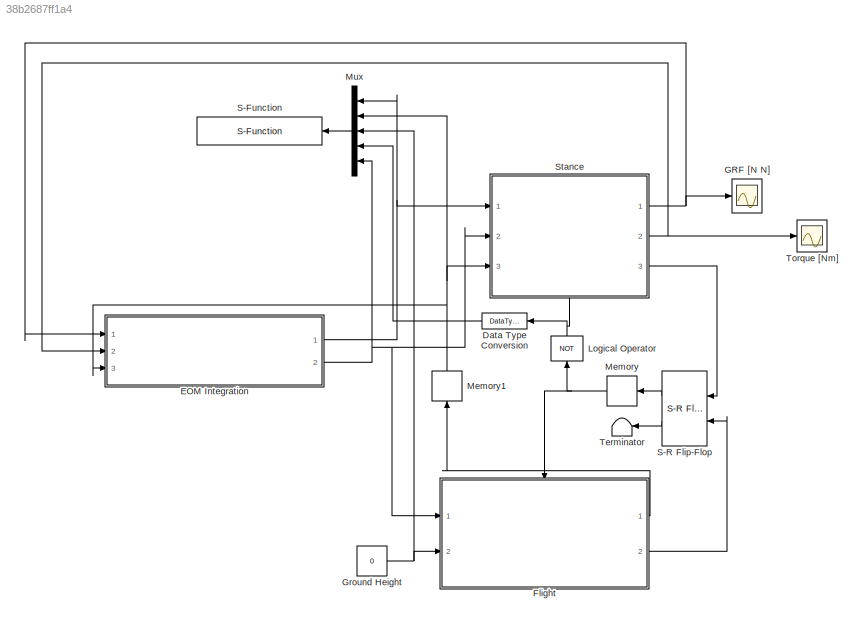
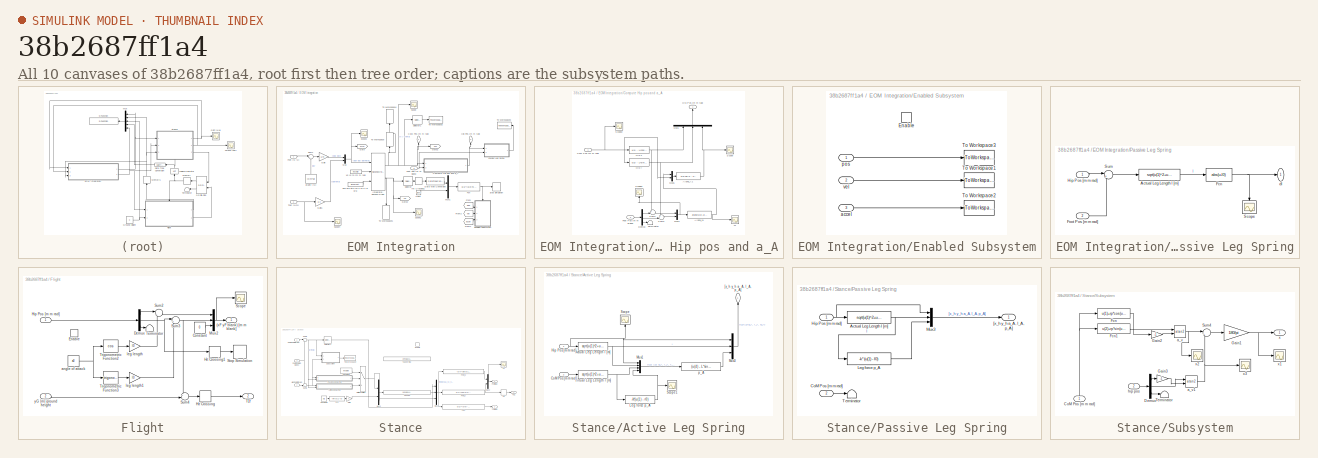
[diagram: thumbnail index - all 10 canvases of the model, root first then tree order]
MODEL slx_38b2687ff1a4
KIND model
CONFIG AbsTol = 1e-6
CONFIG FixedStep = auto
CONFIG MaxStep = 1e-3
CONFIG MinStep = auto
CONFIG RelTol = 1e-4
CONFIG SampleTimeConstraint = Unconstrained
CONFIG Solver = ode45
CONFIG SolverMode = Auto
CONFIG SolverName = ode45
CONFIG StartTime = 0.0
CONFIG StopTime = 500
BLOCK [DataTypeConversion] Data Type Conversion
  OutDataTypeStr = double
  RndMeth = Floor
  SaturateOnIntegerOverflow = off
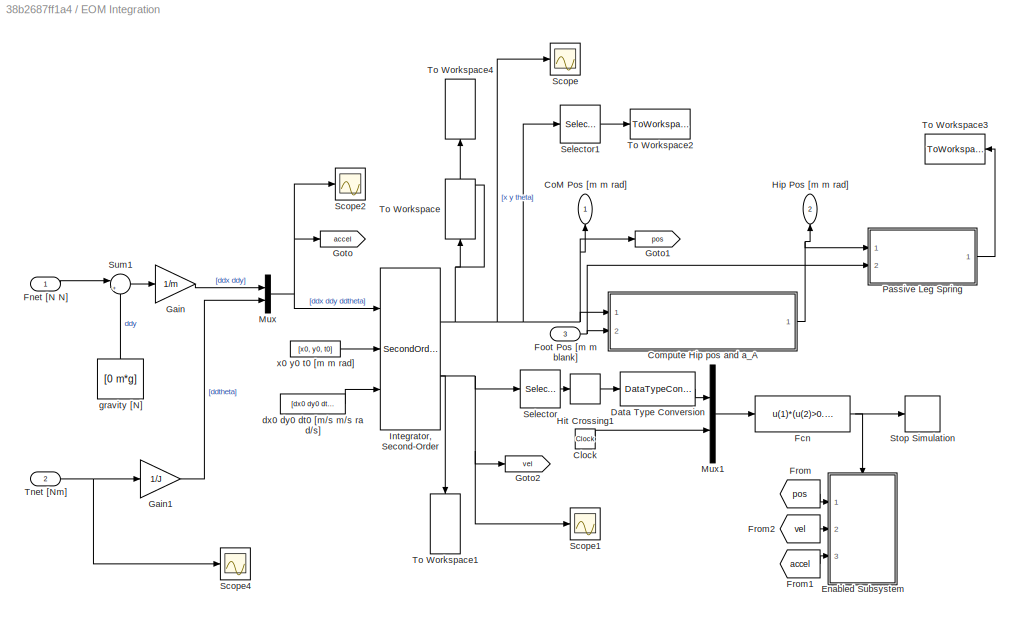
BLOCK [SubSystem] EOM Integration
  Ports = [3, 2]
  RequestExecContextInheritance = off
BLOCK [Clock] EOM Integration/Clock
BLOCK [Outport] EOM Integration/CoM Pos [m m rad]
  IconDisplay = Port number
BLOCK [SubSystem] EOM Integration/Compute Hip pos and a_A
  Ports = [2, 1]
  RequestExecContextInheritance = off
BLOCK [Fcn] EOM Integration/Compute Hip pos and a_A/Alpha_A1
  Expr = u(1)+pi/2 - u(4)
BLOCK [Fcn] EOM Integration/Compute Hip pos and a_A/Alpha_s1
  Expr = atan2(u(2),u(1)) - pi
BLOCK [Inport] EOM Integration/Compute Hip pos and a_A/CoM Pos [m m rad]
  IconDisplay = Port number
BLOCK [Demux] EOM Integration/Compute Hip pos and a_A/Demux
  DisplayOption = bar
  Outputs = 3
  Ports = [1, 3]
BLOCK [Inport] EOM Integration/Compute Hip pos and a_A/Foot Pos [m m blank]
  IconDisplay = Port number
  Port = 2
BLOCK [Outport] EOM Integration/Compute Hip pos and a_A/Hip Pos [m m rad]
  IconDisplay = Port number
BLOCK [Fcn] EOM Integration/Compute Hip pos and a_A/Hip x
  Expr = u(1) - L*cos(u(3))
BLOCK [Fcn] EOM Integration/Compute Hip pos and a_A/Hip y
  Expr = u(2) - L*sin(u(3))
BLOCK [Mux] EOM Integration/Compute Hip pos and a_A/Mux1
  DisplayOption = bar
  Inputs = 3
  Ports = [3, 1]
BLOCK [Mux] EOM Integration/Compute Hip pos and a_A/Mux4
  DisplayOption = bar
  Inputs = 2
  Ports = [2, 1]
BLOCK [Mux] EOM Integration/Compute Hip pos and a_A/Mux5
  DisplayOption = bar
  Inputs = 2
  Ports = [2, 1]
BLOCK [Scope] EOM Integration/Compute Hip pos and a_A/Scope
  Floating = off
  LimitDataPoints = off
  NumInputPorts = 1
  Ports = [1]
  SaveName = ScopeData2
  TimeRange = 5
  ZoomMode = xonly
BLOCK [Scope] EOM Integration/Compute Hip pos and a_A/Scope1
  Floating = off
  NumInputPorts = 1
  Ports = [1]
  SaveName = ScopeData1
  ZoomMode = xonly
BLOCK [Scope] EOM Integration/Compute Hip pos and a_A/Scope2
  Floating = off
  LimitDataPoints = off
  NumInputPorts = 1
  Ports = [1]
  SaveName = ScopeData9
  ZoomMode = yonly
BLOCK [Sum] EOM Integration/Compute Hip pos and a_A/Sum2
  IconShape = round
  InputSameDT = off
  Inputs = +-|
  OutDataTypeStr = Inherit: Inherit via internal rule
  Ports = [2, 1]
  SaturateOnIntegerOverflow = off
BLOCK [Sum] EOM Integration/Compute Hip pos and a_A/Sum3
  IconShape = round
  InputSameDT = off
  Inputs = +-|
  OutDataTypeStr = Inherit: Inherit via internal rule
  Ports = [2, 1]
  SaturateOnIntegerOverflow = off
BLOCK [Terminator] EOM Integration/Compute Hip pos and a_A/Terminator
BLOCK [Scope] EOM Integration/Compute Hip pos and a_A/x1
  Floating = off
  NumInputPorts = 1
  Ports = [1]
  SaveName = ScopeData4
  ZoomMode = yonly
BLOCK [DataTypeConversion] EOM Integration/Data Type Conversion
  OutDataTypeStr = double
  RndMeth = Floor
  SaturateOnIntegerOverflow = off
BLOCK [SubSystem] EOM Integration/Enabled Subsystem
  Ports = [3, 0, 1]
  RequestExecContextInheritance = off
  TreatAsAtomicUnit = on
BLOCK [EnablePort] EOM Integration/Enabled Subsystem/Enable
  Ports = []
BLOCK [ToWorkspace] EOM Integration/Enabled Subsystem/To Workspace1
  FixptAsFi = on
  MaxDataPoints = inf
  Ports = [1]
  SampleTime = -1
  Save2DSignal = 3-D array (concatenate along third dimension)
  SaveFormat = Timeseries
  VariableName = apexvel
BLOCK [ToWorkspace] EOM Integration/Enabled Subsystem/To Workspace2
  FixptAsFi = on
  MaxDataPoints = inf
  Ports = [1]
  SampleTime = -1
  Save2DSignal = 3-D array (concatenate along third dimension)
  SaveFormat = Timeseries
  VariableName = apexaccel
BLOCK [ToWorkspace] EOM Integration/Enabled Subsystem/To Workspace3
  FixptAsFi = on
  MaxDataPoints = inf
  Ports = [1]
  SampleTime = -1
  Save2DSignal = 3-D array (concatenate along third dimension)
  SaveFormat = Timeseries
  VariableName = apexpos
BLOCK [Inport] EOM Integration/Enabled Subsystem/accel
  IconDisplay = Port number
  Port = 3
BLOCK [Inport] EOM Integration/Enabled Subsystem/pos
  IconDisplay = Port number
BLOCK [Inport] EOM Integration/Enabled Subsystem/vel
  IconDisplay = Port number
  Port = 2
BLOCK [Fcn] EOM Integration/Fcn
  Expr = u(1)*(u(2)>0.1)
BLOCK [Inport] EOM Integration/Fnet [N N]
  IconDisplay = Port number
BLOCK [Inport] EOM Integration/Foot Pos [m m blank]
  IconDisplay = Port number
  Port = 3
BLOCK [From] EOM Integration/From
  GotoTag = pos
BLOCK [From] EOM Integration/From1
  GotoTag = accel
BLOCK [From] EOM Integration/From2
  GotoTag = vel
BLOCK [Gain] EOM Integration/Gain
  Gain = 1/m
  OutDataTypeStr = Inherit: Inherit via internal rule
  ParamDataTypeStr = Inherit: Inherit via internal rule
  SaturateOnIntegerOverflow = off
BLOCK [Gain] EOM Integration/Gain1
  Gain = 1/J
  OutDataTypeStr = Inherit: Inherit via internal rule
  ParamDataTypeStr = Inherit: Inherit via internal rule
  SaturateOnIntegerOverflow = off
BLOCK [Goto] EOM Integration/Goto
  GotoTag = accel
BLOCK [Goto] EOM Integration/Goto1
  GotoTag = pos
BLOCK [Goto] EOM Integration/Goto2
  GotoTag = vel
BLOCK [Outport] EOM Integration/Hip Pos [m m rad]
  IconDisplay = Port number
  Port = 2
BLOCK [HitCross] EOM Integration/Hit Crossing1
  HitCrossingDirection = falling
  Ports = [1, 1]
BLOCK [SecondOrderIntegrator] EOM Integration/Integrator, Second-Order
  ICSourceDXDT = external
  ICSourceX = external
  Ports = [3, 2]
BLOCK [Mux] EOM Integration/Mux
  DisplayOption = bar
  Inputs = 2
  Ports = [2, 1]
BLOCK [Mux] EOM Integration/Mux1
  DisplayOption = bar
  Inputs = 2
  Ports = [2, 1]
BLOCK [SubSystem] EOM Integration/Passive Leg Spring
  Ports = [2, 1]
  RequestExecContextInheritance = off
BLOCK [Fcn] EOM Integration/Passive Leg Spring/Actual Leg Length l [m]
  Expr = sqrt(u(1)^2+u(2)^2)
BLOCK [Fcn] EOM Integration/Passive Leg Spring/Fcn
  Expr = abs(u-l0)
BLOCK [Inport] EOM Integration/Passive Leg Spring/Foot Pos [m m rad]
  IconDisplay = Port number
  Port = 2
BLOCK [Inport] EOM Integration/Passive Leg Spring/Hip Pos [m m rad]
  IconDisplay = Port number
BLOCK [Scope] EOM Integration/Passive Leg Spring/Scope
  Floating = off
  NumInputPorts = 1
  Ports = [1]
  SaveName = ScopeData14
BLOCK [Sum] EOM Integration/Passive Leg Spring/Sum
  IconShape = round
  InputSameDT = off
  Inputs = |+-
  OutDataTypeStr = Inherit: Inherit via internal rule
  Ports = [2, 1]
  SaturateOnIntegerOverflow = off
BLOCK [Outport] EOM Integration/Passive Leg Spring/dl
  IconDisplay = Port number
BLOCK [Scope] EOM Integration/Scope
  Floating = off
  MaxDataPoints = 500000
  NumInputPorts = 1
  Ports = [1]
  SaveName = ScopeData7
  TimeRange = 50
  YMax = 250
  YMin = -0
  ZoomMode = yonly
BLOCK [Scope] EOM Integration/Scope1
  Floating = off
  MaxDataPoints = 500000
  NumInputPorts = 1
  Ports = [1]
  SaveName = ScopeData8
  YMax = 5.5
  YMin = -1
BLOCK [Scope] EOM Integration/Scope2
  Floating = off
  MaxDataPoints = 500000
  NumInputPorts = 1
  Ports = [1]
  SaveName = ScopeData13
  TimeRange = 50
  YMax = 250
  YMin = -0
  ZoomMode = xonly
BLOCK [Scope] EOM Integration/Scope4
  Floating = off
  LimitDataPoints = off
  MaxDataPoints = 500000
  NumInputPorts = 1
  Ports = [1]
  SaveName = ScopeData16
  YMax = 5.5
  YMin = -1
  ZoomMode = xonly
BLOCK [Selector] EOM Integration/Selector
  Indices = [2]
  InputPortWidth = 3
  Ports = [1, 1]
BLOCK [Selector] EOM Integration/Selector1
  Indices = [2]
  InputPortWidth = 3
  Ports = [1, 1]
BLOCK [Stop] EOM Integration/Stop Simulation
  Commented = on
BLOCK [Sum] EOM Integration/Sum1
  IconShape = round
  InputSameDT = off
  Inputs = |+-
  OutDataTypeStr = Inherit: Inherit via internal rule
  Ports = [2, 1]
  SaturateOnIntegerOverflow = off
BLOCK [Inport] EOM Integration/Tnet [Nm]
  IconDisplay = Port number
  Port = 2
BLOCK [ToWorkspace] EOM Integration/To Workspace
  FixptAsFi = on
  MaxDataPoints = inf
  Ports = [1]
  SampleTime = -1
  Save2DSignal = 3-D array (concatenate along third dimension)
  VariableName = pos
BLOCK [ToWorkspace] EOM Integration/To Workspace1
  FixptAsFi = on
  MaxDataPoints = inf
  Ports = [1]
  SampleTime = -1
  Save2DSignal = 3-D array (concatenate along third dimension)
  VariableName = vel
BLOCK [ToWorkspace] EOM Integration/To Workspace2
  FixptAsFi = on
  MaxDataPoints = inf
  Ports = [1]
  SampleTime = -1
  Save2DSignal = 3-D array (concatenate along third dimension)
  SaveFormat = Structure With Time
  VariableName = y1
BLOCK [ToWorkspace] EOM Integration/To Workspace3
  FixptAsFi = on
  MaxDataPoints = inf
  Ports = [1]
  SampleTime = -1
  Save2DSignal = 3-D array (concatenate along third dimension)
  VariableName = dl
BLOCK [ToWorkspace] EOM Integration/To Workspace4
  FixptAsFi = on
  MaxDataPoints = inf
  Ports = [1]
  SampleTime = -1
  Save2DSignal = 3-D array (concatenate along third dimension)
  SaveFormat = Timeseries
  VariableName = pos2
BLOCK [Constant] EOM Integration/dx0 dy0 dt0 [m//s m//s ra d//s]
  Value = [dx0 dy0 dt0]
BLOCK [Constant] EOM Integration/gravity  [N]
  Value = [0 m*g]
BLOCK [Constant] EOM Integration/x0 y0 t0 [m m rad]
  Value = [x0, y0, t0]
BLOCK [SubSystem] Flight
  Ports = [2, 2, 1]
  RequestExecContextInheritance = off
BLOCK [Outport] Flight/(xF yF blank) [m m blank]
  AttributesFormatString = %<OutputWhenDisabled>
  IconDisplay = Port number
  InitialOutput = [0 0 0]
BLOCK [Constant] Flight/Constant
  Value = 0
BLOCK [Demux] Flight/Demux
  DisplayOption = bar
  Outputs = 3
  Ports = [1, 3]
BLOCK [EnablePort] Flight/Enable
  Ports = []
  StatesWhenEnabling = reset
BLOCK [Inport] Flight/Hip Pos [m m rad]
  IconDisplay = Port number
BLOCK [HitCross] Flight/Hit Crossing
  HitCrossingDirection = falling
  Ports = [1, 1]
BLOCK [HitCross] Flight/Hit Crossing1
  HitCrossingDirection = falling
  Ports = [1, 1]
BLOCK [Mux] Flight/Mux2
  DisplayOption = bar
  Inputs = 3
  Ports = [3, 1]
BLOCK [Scope] Flight/Scope
  Floating = off
  NumInputPorts = 1
  Ports = [1]
  SaveName = ScopeData11
  ZoomMode = xonly
BLOCK [Stop] Flight/Stop Simulation
BLOCK [Sum] Flight/Sum2
  IconShape = round
  InputSameDT = off
  Inputs = |++
  OutDataTypeStr = Inherit: Inherit via internal rule
  Ports = [2, 1]
  SaturateOnIntegerOverflow = off
BLOCK [Sum] Flight/Sum3
  IconShape = round
  InputSameDT = off
  Inputs = |+-
  OutDataTypeStr = Inherit: Inherit via internal rule
  Ports = [2, 1]
  SaturateOnIntegerOverflow = off
BLOCK [Sum] Flight/Sum4
  IconShape = round
  InputSameDT = off
  Inputs = +-|
  OutDataTypeStr = Inherit: Inherit via internal rule
  Ports = [2, 1]
  SaturateOnIntegerOverflow = off
BLOCK [Outport] Flight/TD!
  AttributesFormatString = %<OutputWhenDisabled>
  IconDisplay = Port number
  InitialOutput = 0
  OutputWhenDisabled = reset
  Port = 2
BLOCK [Terminator] Flight/Terminator
BLOCK [Trigonometry] Flight/Trigonometric Function2
  Operator = cos
  Ports = [1, 1]
BLOCK [Trigonometry] Flight/Trigonometric Function3
  Ports = [1, 1]
BLOCK [Constant] Flight/angle of attack
  Value = a0
BLOCK [Gain] Flight/leg length
  Gain = l0
  OutDataTypeStr = Inherit: Inherit via internal rule
  ParamDataTypeStr = Inherit: Inherit via internal rule
  SaturateOnIntegerOverflow = off
BLOCK [Gain] Flight/leg length1
  Gain = l0
  OutDataTypeStr = Inherit: Inherit via internal rule
  ParamDataTypeStr = Inherit: Inherit via internal rule
  SaturateOnIntegerOverflow = off
BLOCK [Inport] Flight/yG [m] ground height
  IconDisplay = Port number
  Port = 2
BLOCK [Scope] GRF [N N]
  DataFormat = StructureWithTime
  Floating = off
  MaxDataPoints = 50000
  NumInputPorts = 1
  Ports = [1]
  TimeRange = 8
  YMax = 2250
  YMin = -500
  ZoomMode = xonly
BLOCK [Constant] Ground Height
  Value = 0
BLOCK [Logic] Logical Operator
  AllPortsSameDT = off
  Operator = NOT
  OutDataTypeStr = boolean
  Ports = [1, 1]
BLOCK [Memory] Memory
  X0 = 1
BLOCK [Memory] Memory1
  X0 = [(x0 - xr0) (y0 - yr0)  0]
BLOCK [Mux] Mux
  DisplayOption = bar
  Inputs = 5
  Ports = [5, 1]
BLOCK [S-Function] S-Function
  FunctionName = AnimSMR2
  Parameters = 0.005
  Ports = [1]
BLOCK [Reference] S-R Flip-Flop  REF=simulink_extras/Flip Flops/S-R
Flip-Flop
  Ports = [2, 2]
  SourceBlock = simulink_extras/Flip Flops/S-R\nFlip-Flop
  SourceType = SRFlipFlop
  initial_condition = 1
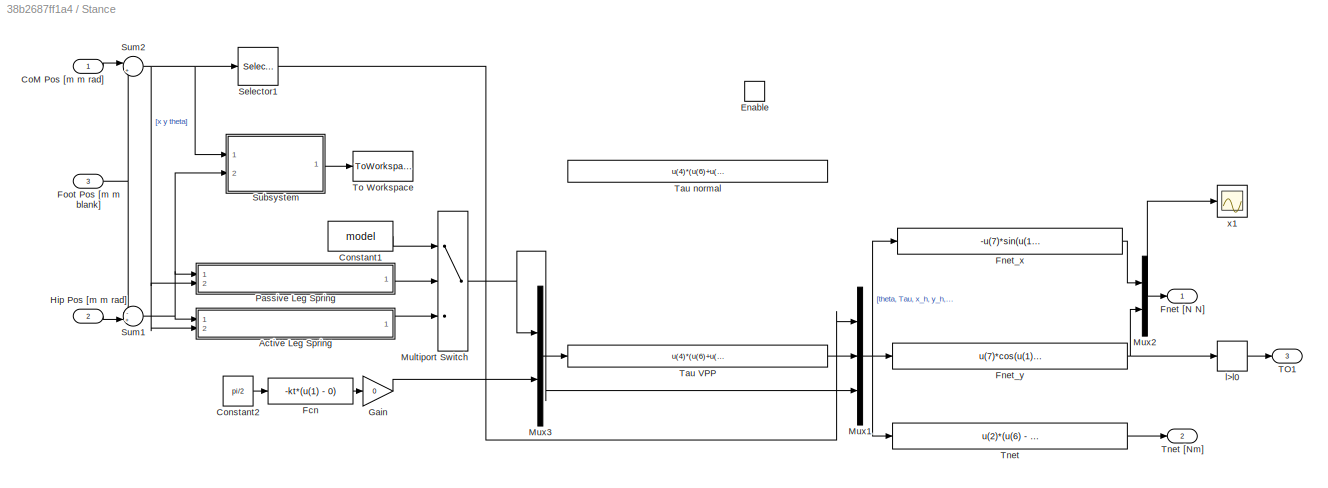
BLOCK [SubSystem] Stance
  Ports = [3, 3, 1]
  RequestExecContextInheritance = off
BLOCK [SubSystem] Stance/Active Leg Spring
  Ports = [2, 1]
  RequestExecContextInheritance = off
BLOCK [Fcn] Stance/Active Leg Spring/Actual Leg Length l [m]
  Expr = sqrt(u(1)^2+u(2)^2)
BLOCK [Inport] Stance/Active Leg Spring/CoM Pos [m m rad]
  IconDisplay = Port number
  Port = 2
BLOCK [Inport] Stance/Active Leg Spring/Hip Pos [m m rad]
  IconDisplay = Port number
BLOCK [Fcn] Stance/Active Leg Spring/Leg force p_A
  Expr = -k*(u(1) - r0)
BLOCK [Mux] Stance/Active Leg Spring/Mux1
  DisplayOption = bar
  Ports = [4, 1]
BLOCK [Mux] Stance/Active Leg Spring/Mux3
  DisplayOption = bar
  Inputs = 3
  Ports = [3, 1]
BLOCK [Scope] Stance/Active Leg Spring/Scope
  Floating = off
  NumInputPorts = 1
  Ports = [1]
  SaveName = ScopeData2
BLOCK [Scope] Stance/Active Leg Spring/Scope1
  Floating = off
  LimitDataPoints = off
  NumInputPorts = 1
  Ports = [1]
  SaveName = ScopeData5
  ZoomMode = xonly
BLOCK [Fcn] Stance/Active Leg Spring/Virtual Leg Length r [m]
  Expr = sqrt(u(1)^2+u(2)^2)
BLOCK [Outport] Stance/Active Leg Spring/[x_h y_h a_A, l_A, p_A]
  IconDisplay = Port number
BLOCK [Fcn] Stance/Active Leg Spring/p_A
  Expr = (u(4) - L*sin(u(3)))*u(6)/u(5)
BLOCK [Inport] Stance/CoM Pos [m m rad] 
  IconDisplay = Port number
BLOCK [Constant] Stance/Constant1
  Value = model
BLOCK [Constant] Stance/Constant2
  Value = pi/2
BLOCK [EnablePort] Stance/Enable
  Ports = []
  StatesWhenEnabling = reset
BLOCK [Fcn] Stance/Fcn
  Expr = -kt*(u(1) - 0)
BLOCK [Outport] Stance/Fnet [N N]
  IconDisplay = Port number
  InitialOutput = [0,0]
  OutputWhenDisabled = reset
BLOCK [Fcn] Stance/Fnet_x
  Expr = -u(7)*sin(u(1)+u(5)) + u(2)*cos(u(1)+u(5))/u(6)
BLOCK [Fcn] Stance/Fnet_y
  Expr = u(7)*cos(u(1)+u(5)) + u(2)*sin(u(1)+u(5))/u(6)
BLOCK [Inport] Stance/Foot Pos [m m blank]
  IconDisplay = Port number
  Port = 3
BLOCK [Gain] Stance/Gain
  Gain = 0
  OutDataTypeStr = Inherit: Inherit via internal rule
  ParamDataTypeStr = Inherit: Inherit via internal rule
  SaturateOnIntegerOverflow = off
BLOCK [Inport] Stance/Hip Pos [m m rad]
  IconDisplay = Port number
  Port = 2
BLOCK [MultiPortSwitch] Stance/Multiport Switch
  InputSameDT = off
  Inputs = 2
  Ports = [3, 1]
  SaturateOnIntegerOverflow = off
BLOCK [Mux] Stance/Mux1
  DisplayOption = bar
  Inputs = 3
  Ports = [3, 1]
BLOCK [Mux] Stance/Mux2
  DisplayOption = bar
  Inputs = 2
  Ports = [2, 1]
BLOCK [Mux] Stance/Mux3
  DisplayOption = bar
  Inputs = 2
  Ports = [2, 1]
BLOCK [SubSystem] Stance/Passive Leg Spring
  Ports = [2, 1]
  RequestExecContextInheritance = off
BLOCK [Fcn] Stance/Passive Leg Spring/Actual Leg Length l [m]
  Expr = sqrt(u(1)^2+u(2)^2)
BLOCK [Inport] Stance/Passive Leg Spring/CoM Pos [m m rad]
  IconDisplay = Port number
  Port = 2
BLOCK [Inport] Stance/Passive Leg Spring/Hip Pos [m m rad]
  IconDisplay = Port number
BLOCK [Fcn] Stance/Passive Leg Spring/Leg force p_A
  Expr = -k*(u(1) - l0)
BLOCK [Mux] Stance/Passive Leg Spring/Mux3
  DisplayOption = bar
  Inputs = 3
  Ports = [3, 1]
BLOCK [Terminator] Stance/Passive Leg Spring/Terminator
BLOCK [Outport] Stance/Passive Leg Spring/[x_h y_h a_A, l_A, p_A]
  IconDisplay = Port number
BLOCK [Selector] Stance/Selector1
  Indices = [3]
  InputPortWidth = 3
  Ports = [1, 1]
BLOCK [SubSystem] Stance/Subsystem
  Ports = [2, 1]
  RequestExecContextInheritance = off
BLOCK [Inport] Stance/Subsystem/CoM Pos [m m rad]
  IconDisplay = Port number
BLOCK [Demux] Stance/Subsystem/Demux
  DisplayOption = bar
  Outputs = 3
  Ports = [1, 3]
BLOCK [Fcn] Stance/Subsystem/Fcn
  Expr = u(1)+rp*cos(u(3))
BLOCK [Fcn] Stance/Subsystem/Fcn1
  Expr = u(2)+rp*sin(u(3))
BLOCK [Gain] Stance/Subsystem/Gain1
  Gain = 180/pi
  OutDataTypeStr = Inherit: Inherit via internal rule
  ParamDataTypeStr = Inherit: Inherit via internal rule
  SaturateOnIntegerOverflow = off
BLOCK [Gain] Stance/Subsystem/Gain2
  Gain = -1
  OutDataTypeStr = Inherit: Inherit via internal rule
  ParamDataTypeStr = Inherit: Inherit via internal rule
  SaturateOnIntegerOverflow = off
BLOCK [Gain] Stance/Subsystem/Gain3
  Gain = -1
  OutDataTypeStr = Inherit: Inherit via internal rule
  ParamDataTypeStr = Inherit: Inherit via internal rule
  SaturateOnIntegerOverflow = off
BLOCK [Sum] Stance/Subsystem/Sum4
  IconShape = round
  InputSameDT = off
  Inputs = |+-
  OutDataTypeStr = Inherit: Inherit via internal rule
  Ports = [2, 1]
  SaturateOnIntegerOverflow = off
BLOCK [Terminator] Stance/Subsystem/Terminator
BLOCK [Trigonometry] Stance/Subsystem/a_v
  Operator = atan2
  Ports = [2, 1]
BLOCK [Trigonometry] Stance/Subsystem/a_v1
  Operator = atan2
  Ports = [2, 1]
BLOCK [Inport] Stance/Subsystem/hip pos
  IconDisplay = Port number
  Port = 2
BLOCK [Outport] Stance/Subsystem/x
  IconDisplay = Port number
BLOCK [Scope] Stance/Subsystem/x1
  Floating = off
  LimitDataPoints = off
  MaxDataPoints = 500
  NumInputPorts = 1
  Ports = [1]
  SaveName = ScopeData6
  YMax = 3.5
  YMin = -3.5
  ZoomMode = xonly
BLOCK [Scope] Stance/Subsystem/x2
  Floating = off
  LimitDataPoints = off
  MaxDataPoints = 500
  NumInputPorts = 1
  Ports = [1]
  SaveName = ScopeData10
  YMax = 3.5
  YMin = -3.5
  ZoomMode = xonly
BLOCK [Scope] Stance/Subsystem/x3
  Floating = off
  LimitDataPoints = off
  MaxDataPoints = 500
  NumInputPorts = 1
  Ports = [1]
  SaveName = ScopeData17
  YMax = 3.5
  YMin = -3.5
  ZoomMode = xonly
BLOCK [Sum] Stance/Sum1
  IconShape = round
  InputSameDT = off
  Inputs = -+|
  OutDataTypeStr = Inherit: Inherit via internal rule
  Ports = [2, 1]
  SaturateOnIntegerOverflow = off
BLOCK [Sum] Stance/Sum2
  IconShape = round
  InputSameDT = off
  Inputs = |+-
  OutDataTypeStr = Inherit: Inherit via internal rule
  Ports = [2, 1]
  SaturateOnIntegerOverflow = off
BLOCK [Outport] Stance/TO1
  IconDisplay = Port number
  InitialOutput = [0]
  OutputWhenDisabled = reset
  Port = 3
BLOCK [Fcn] Stance/Tau VPP
  Expr = u(4)*(u(6)+u(5)*(L+rp)*cos(u(3)))/(u(4) - (L+rp)*sin(u(3)))
BLOCK [Fcn] Stance/Tau normal
  Commented = on
  Expr = u(4)*(u(6)+u(5)*L*cos(u(3)))/(u(4) - L*sin(u(3)))
BLOCK [Fcn] Stance/Tnet
  Expr = u(2)*(u(6) - L*sin(u(5)))/u(6) - L*u(7)*cos(u(5))
BLOCK [Outport] Stance/Tnet [Nm]
  IconDisplay = Port number
  InitialOutput = [0]
  OutputWhenDisabled = reset
  Port = 2
BLOCK [ToWorkspace] Stance/To Workspace
  FixptAsFi = on
  MaxDataPoints = inf
  Ports = [1]
  SampleTime = -1
  Save2DSignal = 3-D array (concatenate along third dimension)
  VariableName = x
BLOCK [HitCross] Stance/l>l0
  HitCrossingDirection = falling
  HitCrossingOffset = l0
  Ports = [1, 1]
BLOCK [Scope] Stance/x1
  Floating = off
  LimitDataPoints = off
  MaxDataPoints = 500
  NumInputPorts = 1
  Ports = [1]
  SaveName = ScopeData12
  YMax = 8
  YMin = -9
BLOCK [Terminator] Terminator
BLOCK [Scope] Torque [Nm]
  DataFormat = StructureWithTime
  Floating = off
  NumInputPorts = 1
  Ports = [1]
  SaveName = ScopeData3
  YMax = 10
  YMin = -10
  ZoomMode = yonly
LINE Data Type Conversion:1 -> Mux:4
LINE EOM Integration/Clock:1 -> EOM Integration/Mux1:2
NET EOM Integration/Compute Hip pos and a_A/Alpha_A1:1 -> EOM Integration/Compute Hip pos and a_A/Mux1:3, EOM Integration/Compute Hip pos and a_A/Scope:1
NET EOM Integration/Compute Hip pos and a_A/Alpha_s1:1 -> EOM Integration/Compute Hip pos and a_A/Mux5:1, EOM Integration/Compute Hip pos and a_A/x1:1
NET EOM Integration/Compute Hip pos and a_A/CoM Pos [m m rad]:1 -> EOM Integration/Compute Hip pos and a_A/Hip x:1, EOM Integration/Compute Hip pos and a_A/Hip y:1, EOM Integration/Compute Hip pos and a_A/Mux5:2, EOM Integration/Compute Hip pos and a_A/Scope2:1
LINE EOM Integration/Compute Hip pos and a_A/Demux:1 -> EOM Integration/Compute Hip pos and a_A/Sum2:2
LINE EOM Integration/Compute Hip pos and a_A/Demux:2 -> EOM Integration/Compute Hip pos and a_A/Sum3:2
LINE EOM Integration/Compute Hip pos and a_A/Demux:3 -> EOM Integration/Compute Hip pos and a_A/Terminator:1
LINE EOM Integration/Compute Hip pos and a_A/Foot Pos [m m blank]:1 -> EOM Integration/Compute Hip pos and a_A/Demux:1
NET EOM Integration/Compute Hip pos and a_A/Hip x:1 -> EOM Integration/Compute Hip pos and a_A/Mux1:1, EOM Integration/Compute Hip pos and a_A/Sum2:1
NET EOM Integration/Compute Hip pos and a_A/Hip y:1 -> EOM Integration/Compute Hip pos and a_A/Mux1:2, EOM Integration/Compute Hip pos and a_A/Sum3:1
LINE EOM Integration/Compute Hip pos and a_A/Mux1:1 -> EOM Integration/Compute Hip pos and a_A/Hip Pos [m m rad]:1
NET EOM Integration/Compute Hip pos and a_A/Mux4:1 -> EOM Integration/Compute Hip pos and a_A/Alpha_s1:1, EOM Integration/Compute Hip pos and a_A/Scope1:1
LINE EOM Integration/Compute Hip pos and a_A/Mux5:1 -> EOM Integration/Compute Hip pos and a_A/Alpha_A1:1
LINE EOM Integration/Compute Hip pos and a_A/Sum2:1 -> EOM Integration/Compute Hip pos and a_A/Mux4:1
LINE EOM Integration/Compute Hip pos and a_A/Sum3:1 -> EOM Integration/Compute Hip pos and a_A/Mux4:2
NET EOM Integration/Compute Hip pos and a_A:1 -> EOM Integration/Hip Pos [m m rad]:1, EOM Integration/Passive Leg Spring:1
LINE EOM Integration/Data Type Conversion:1 -> EOM Integration/Mux1:1
LINE EOM Integration/Enabled Subsystem/accel:1 -> EOM Integration/Enabled Subsystem/To Workspace2:1
LINE EOM Integration/Enabled Subsystem/pos:1 -> EOM Integration/Enabled Subsystem/To Workspace3:1
LINE EOM Integration/Enabled Subsystem/vel:1 -> EOM Integration/Enabled Subsystem/To Workspace1:1
NET EOM Integration/Fcn:1 -> EOM Integration/Enabled Subsystem:enable, EOM Integration/Stop Simulation:1
LINE EOM Integration/Fnet [N N]:1 -> EOM Integration/Sum1:1
NET EOM Integration/Foot Pos [m m blank]:1 -> EOM Integration/Compute Hip pos and a_A:2, EOM Integration/Passive Leg Spring:2
LINE EOM Integration/From1:1 -> EOM Integration/Enabled Subsystem:3
LINE EOM Integration/From2:1 -> EOM Integration/Enabled Subsystem:2
LINE EOM Integration/From:1 -> EOM Integration/Enabled Subsystem:1
LINE EOM Integration/Gain1:1 -> EOM Integration/Mux:2
LINE EOM Integration/Gain:1 -> EOM Integration/Mux:1
LINE EOM Integration/Hit Crossing1:1 -> EOM Integration/Data Type Conversion:1
NET EOM Integration/Integrator, Second-Order:1 -> EOM Integration/CoM Pos [m m rad]:1, EOM Integration/Compute Hip pos and a_A:1, EOM Integration/Goto1:1, EOM Integration/Scope:1, EOM Integration/Selector1:1, EOM Integration/To Workspace4:1, EOM Integration/To Workspace:1
NET EOM Integration/Integrator, Second-Order:2 -> EOM Integration/Goto2:1, EOM Integration/Scope1:1, EOM Integration/Selector:1, EOM Integration/To Workspace1:1
LINE EOM Integration/Mux1:1 -> EOM Integration/Fcn:1
NET EOM Integration/Mux:1 -> EOM Integration/Goto:1, EOM Integration/Integrator, Second-Order:1, EOM Integration/Scope2:1
LINE EOM Integration/Passive Leg Spring/Actual Leg Length l [m]:1 -> EOM Integration/Passive Leg Spring/Fcn:1
NET EOM Integration/Passive Leg Spring/Fcn:1 -> EOM Integration/Passive Leg Spring/Scope:1, EOM Integration/Passive Leg Spring/dl:1
LINE EOM Integration/Passive Leg Spring/Foot Pos [m m rad]:1 -> EOM Integration/Passive Leg Spring/Sum:2
LINE EOM Integration/Passive Leg Spring/Hip Pos [m m rad]:1 -> EOM Integration/Passive Leg Spring/Sum:1
LINE EOM Integration/Passive Leg Spring/Sum:1 -> EOM Integration/Passive Leg Spring/Actual Leg Length l [m]:1
LINE EOM Integration/Passive Leg Spring:1 -> EOM Integration/To Workspace3:1
LINE EOM Integration/Selector1:1 -> EOM Integration/To Workspace2:1
LINE EOM Integration/Selector:1 -> EOM Integration/Hit Crossing1:1
LINE EOM Integration/Sum1:1 -> EOM Integration/Gain:1
NET EOM Integration/Tnet [Nm]:1 -> EOM Integration/Gain1:1, EOM Integration/Scope4:1
LINE EOM Integration/dx0 dy0 dt0 [m//s m//s ra d//s]:1 -> EOM Integration/Integrator, Second-Order:3
LINE EOM Integration/gravity  [N]:1 -> EOM Integration/Sum1:2
LINE EOM Integration/x0 y0 t0 [m m rad]:1 -> EOM Integration/Integrator, Second-Order:2
NET EOM Integration:1 -> Mux:1, Stance:1
NET EOM Integration:2 -> Flight:1, Mux:5, Stance:2
LINE Flight/Constant:1 -> Flight/Mux2:3
LINE Flight/Demux:1 -> Flight/Sum2:1
NET Flight/Demux:2 -> Flight/Hit Crossing1:1, Flight/Sum3:1
LINE Flight/Demux:3 -> Flight/Terminator:1
LINE Flight/Hip Pos [m m rad]:1 -> Flight/Demux:1
LINE Flight/Hit Crossing1:1 -> Flight/Stop Simulation:1
LINE Flight/Hit Crossing:1 -> Flight/TD!:1
NET Flight/Mux2:1 -> Flight/(xF yF blank) [m m blank]:1, Flight/Scope:1
LINE Flight/Sum2:1 -> Flight/Mux2:1
NET Flight/Sum3:1 -> Flight/Mux2:2, Flight/Sum4:1
LINE Flight/Sum4:1 -> Flight/Hit Crossing:1
LINE Flight/Trigonometric Function2:1 -> Flight/leg length:1
LINE Flight/Trigonometric Function3:1 -> Flight/leg length1:1
NET Flight/angle of attack:1 -> Flight/Trigonometric Function2:1, Flight/Trigonometric Function3:1
LINE Flight/leg length1:1 -> Flight/Sum3:2
LINE Flight/leg length:1 -> Flight/Sum2:2
LINE Flight/yG [m] ground height:1 -> Flight/Sum4:2
LINE Flight:1 -> Memory1:1
LINE Flight:2 -> S-R Flip-Flop:2
NET Ground Height:1 -> Flight:2, Mux:3
NET Logical Operator:1 -> Data Type Conversion:1, Stance:enable
NET Memory1:1 -> EOM Integration:3, Mux:2, Stance:3
NET Memory:1 -> Flight:enable, Logical Operator:1
LINE Mux:1 -> S-Function:1
LINE S-R Flip-Flop:1 -> Memory:1
LINE S-R Flip-Flop:2 -> Terminator:1
NET Stance/Active Leg Spring/Actual Leg Length l [m]:1 -> Stance/Active Leg Spring/Mux1:2, Stance/Active Leg Spring/Mux3:2
LINE Stance/Active Leg Spring/CoM Pos [m m rad]:1 -> Stance/Active Leg Spring/Virtual Leg Length r [m]:1
NET Stance/Active Leg Spring/Hip Pos [m m rad]:1 -> Stance/Active Leg Spring/Actual Leg Length l [m]:1, Stance/Active Leg Spring/Mux1:1, Stance/Active Leg Spring/Mux3:1, Stance/Active Leg Spring/Scope:1
NET Stance/Active Leg Spring/Leg force p_A:1 -> Stance/Active Leg Spring/Mux1:4, Stance/Active Leg Spring/Scope1:1
LINE Stance/Active Leg Spring/Mux1:1 -> Stance/Active Leg Spring/p_A:1
LINE Stance/Active Leg Spring/Mux3:1 -> Stance/Active Leg Spring/[x_h y_h a_A, l_A, p_A]:1
NET Stance/Active Leg Spring/Virtual Leg Length r [m]:1 -> Stance/Active Leg Spring/Leg force p_A:1, Stance/Active Leg Spring/Mux1:3
LINE Stance/Active Leg Spring/p_A:1 -> Stance/Active Leg Spring/Mux3:3
LINE Stance/Active Leg Spring:1 -> Stance/Multiport Switch:3
LINE Stance/CoM Pos [m m rad] :1 -> Stance/Sum2:1
LINE Stance/Constant1:1 -> Stance/Multiport Switch:1
LINE Stance/Constant2:1 -> Stance/Fcn:1
LINE Stance/Fcn:1 -> Stance/Gain:1
LINE Stance/Fnet_x:1 -> Stance/Mux2:1
NET Stance/Fnet_y:1 -> Stance/Mux2:2, Stance/l>l0:1
NET Stance/Foot Pos [m m blank]:1 -> Stance/Sum1:1, Stance/Sum2:2
LINE Stance/Gain:1 -> Stance/Mux3:2
LINE Stance/Hip Pos [m m rad]:1 -> Stance/Sum1:2
NET Stance/Multiport Switch:1 -> Stance/Mux1:3, Stance/Mux3:1
NET Stance/Mux1:1 -> Stance/Fnet_x:1, Stance/Fnet_y:1, Stance/Tnet:1
NET Stance/Mux2:1 -> Stance/Fnet [N N]:1, Stance/x1:1
LINE Stance/Mux3:1 -> Stance/Tau VPP:1
NET Stance/Passive Leg Spring/Actual Leg Length l [m]:1 -> Stance/Passive Leg Spring/Leg force p_A:1, Stance/Passive Leg Spring/Mux3:2
LINE Stance/Passive Leg Spring/CoM Pos [m m rad]:1 -> Stance/Passive Leg Spring/Terminator:1
NET Stance/Passive Leg Spring/Hip Pos [m m rad]:1 -> Stance/Passive Leg Spring/Actual Leg Length l [m]:1, Stance/Passive Leg Spring/Mux3:1
LINE Stance/Passive Leg Spring/Leg force p_A:1 -> Stance/Passive Leg Spring/Mux3:3
LINE Stance/Passive Leg Spring/Mux3:1 -> Stance/Passive Leg Spring/[x_h y_h a_A, l_A, p_A]:1
LINE Stance/Passive Leg Spring:1 -> Stance/Multiport Switch:2
LINE Stance/Selector1:1 -> Stance/Mux1:1
NET Stance/Subsystem/CoM Pos [m m rad]:1 -> Stance/Subsystem/Fcn1:1, Stance/Subsystem/Fcn:1
LINE Stance/Subsystem/Demux:1 -> Stance/Subsystem/Gain3:1
LINE Stance/Subsystem/Demux:2 -> Stance/Subsystem/a_v1:1
LINE Stance/Subsystem/Demux:3 -> Stance/Subsystem/Terminator:1
LINE Stance/Subsystem/Fcn1:1 -> Stance/Subsystem/a_v:1
LINE Stance/Subsystem/Fcn:1 -> Stance/Subsystem/Gain2:1
NET Stance/Subsystem/Gain1:1 -> Stance/Subsystem/x1:1, Stance/Subsystem/x:1
LINE Stance/Subsystem/Gain2:1 -> Stance/Subsystem/a_v:2
LINE Stance/Subsystem/Gain3:1 -> Stance/Subsystem/a_v1:2
LINE Stance/Subsystem/Sum4:1 -> Stance/Subsystem/Gain1:1
NET Stance/Subsystem/a_v1:1 -> Stance/Subsystem/Sum4:2, Stance/Subsystem/x3:1
NET Stance/Subsystem/a_v:1 -> Stance/Subsystem/Sum4:1, Stance/Subsystem/x2:1
LINE Stance/Subsystem/hip pos:1 -> Stance/Subsystem/Demux:1
LINE Stance/Subsystem:1 -> Stance/To Workspace:1
NET Stance/Sum1:1 -> Stance/Active Leg Spring:1, Stance/Passive Leg Spring:1, Stance/Subsystem:2
NET Stance/Sum2:1 -> Stance/Active Leg Spring:2, Stance/Passive Leg Spring:2, Stance/Selector1:1, Stance/Subsystem:1
LINE Stance/Tau VPP:1 -> Stance/Mux1:2
LINE Stance/Tnet:1 -> Stance/Tnet [Nm]:1
LINE Stance/l>l0:1 -> Stance/TO1:1
NET Stance:1 -> EOM Integration:1, GRF [N N]:1
NET Stance:2 -> EOM Integration:2, Torque [Nm]:1
LINE Stance:3 -> S-R Flip-Flop:1
note: NET lines group one-source signal fan-out (src -> all destinations, sorted); 1:1 wires keep LINE
